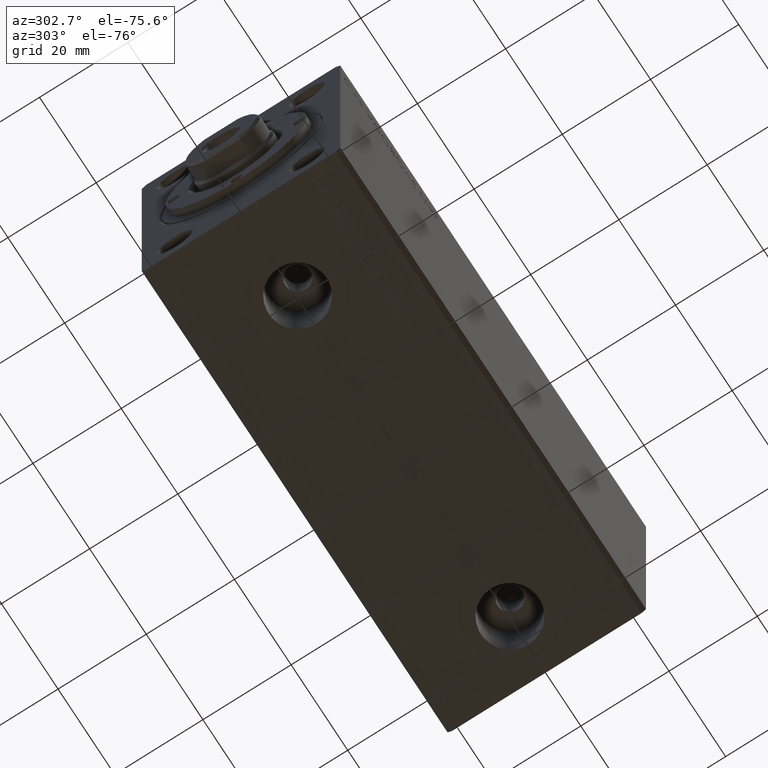
[diagram: clean part render]
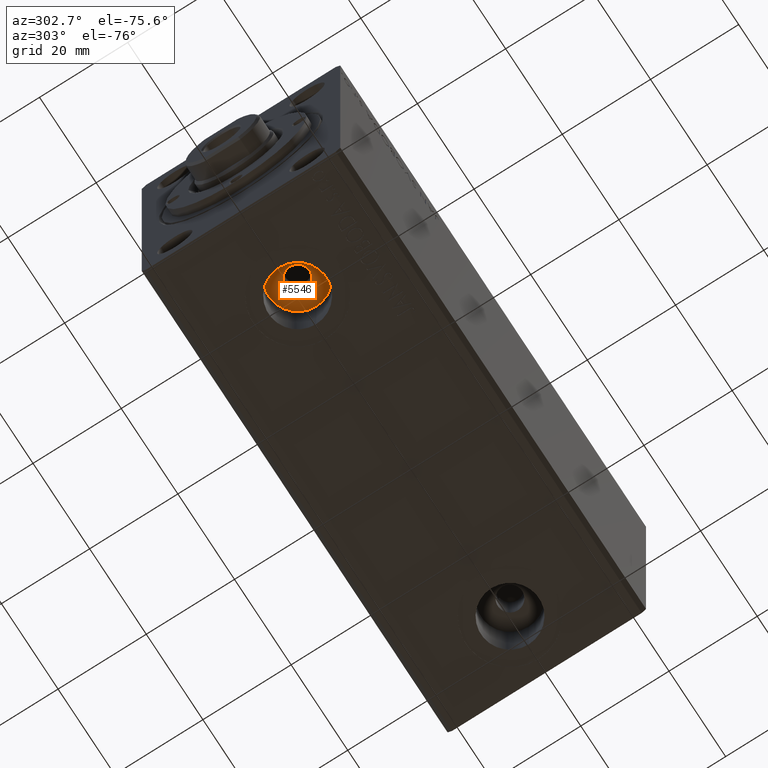
[diagram: same view with one face highlighted and labeled with its STEP entity id]
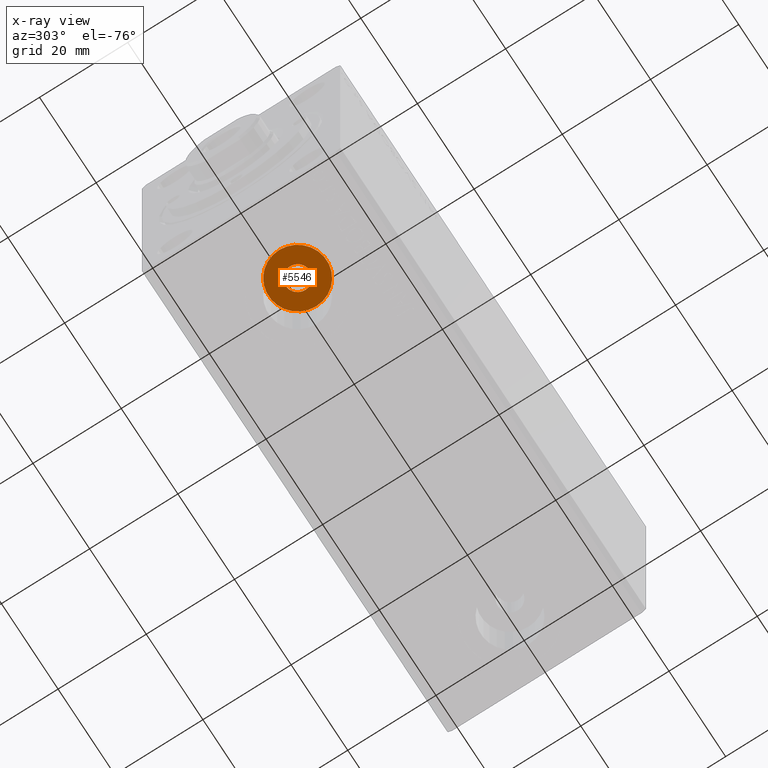
[diagram: x-ray of the same camera — body ghosted, the highlighted face saturated]
A machine part, auxiliary view. The second image highlights one B-rep face of the part: STEP entity #5546.
The next image is the same camera in x-ray: the body ghosted, the highlighted face saturated — about 0% of this face is hidden behind the body in this view.
In plain terms, the highlighted planar face has unit normal (0, 0, -1).
Its self-contained STEP definition (entity closure, byte-faithful):
#125 = CARTESIAN_POINT ( 'NONE',  ( 22.74999999999999645, 3.367778697655218053E-16, -18.79999999999999716 ) ) ;
#198 = DIRECTION ( 'NONE',  ( 0.000000000000000000, 0.000000000000000000, -1.000000000000000000 ) ) ;
#272 = VERTEX_POINT ( 'NONE', #10076 ) ;
#376 = EDGE_CURVE ( 'NONE', #27075, #32230, #25580, .T. ) ;
#534 = EDGE_CURVE ( 'NONE', #32230, #27075, #19882, .T. ) ;
#1782 = ORIENTED_EDGE ( 'NONE', *, *, #534, .T. ) ;
#1894 = DIRECTION ( 'NONE',  ( -1.000000000000000000, 0.000000000000000000, -0.000000000000000000 ) ) ;
#4990 = CARTESIAN_POINT ( 'NONE',  ( 19.99999999999999645, 2.578758962896938545E-15, -18.79999999999999716 ) ) ;
#5300 = DIRECTION ( 'NONE',  ( -1.000000000000000000, 0.000000000000000000, 0.000000000000000000 ) ) ;
#5546 = ADVANCED_FACE ( 'NONE', ( #15710, #22643 ), #32487, .T. ) ;
#5626 = ORIENTED_EDGE ( 'NONE', *, *, #24999, .F. ) ;
#6239 = DIRECTION ( 'NONE',  ( 0.000000000000000000, 0.000000000000000000, -1.000000000000000000 ) ) ;
#7029 = CARTESIAN_POINT ( 'NONE',  ( 19.99999999999999645, 0.000000000000000000, -18.79999999999999716 ) ) ;
#8753 = CARTESIAN_POINT ( 'NONE',  ( 26.57999999999999829, 3.384576556735897587E-15, -18.79999999999999716 ) ) ;
#9361 = VERTEX_POINT ( 'NONE', #125 ) ;
#10076 = CARTESIAN_POINT ( 'NONE',  ( 17.24999999999999645, 0.000000000000000000, -18.79999999999999716 ) ) ;
#10267 = AXIS2_PLACEMENT_3D ( 'NONE', #7029, #13946, #20654 ) ;
#10642 = CARTESIAN_POINT ( 'NONE',  ( 19.99999999999999645, 0.000000000000000000, -18.79999999999999716 ) ) ;
#11668 = ORIENTED_EDGE ( 'NONE', *, *, #30477, .F. ) ;
#13946 = DIRECTION ( 'NONE',  ( 0.000000000000000000, 0.000000000000000000, -1.000000000000000000 ) ) ;
#15710 = FACE_BOUND ( 'NONE', #40167, .T. ) ;
#16973 = CIRCLE ( 'NONE', #27696, 2.749999999999999112 ) ;
#18389 = DIRECTION ( 'NONE',  ( 0.000000000000000000, 0.000000000000000000, -1.000000000000000000 ) ) ;
#18591 = ORIENTED_EDGE ( 'NONE', *, *, #376, .T. ) ;
#19882 = CIRCLE ( 'NONE', #27037, 6.580000000000002736 ) ;
#20654 = DIRECTION ( 'NONE',  ( -1.000000000000000000, 0.000000000000000000, 0.000000000000000000 ) ) ;
#22643 = FACE_OUTER_BOUND ( 'NONE', #26335, .T. ) ;
#24999 = EDGE_CURVE ( 'NONE', #9361, #272, #16973, .T. ) ;
#25257 = CIRCLE ( 'NONE', #10267, 2.749999999999999112 ) ;
#25580 = CIRCLE ( 'NONE', #32724, 6.580000000000002736 ) ;
#25612 = AXIS2_PLACEMENT_3D ( 'NONE', #4990, #18389, #1894 ) ;
#26335 = EDGE_LOOP ( 'NONE', ( #18591, #1782 ) ) ;
#27008 = CARTESIAN_POINT ( 'NONE',  ( 13.41999999999999460, 2.578758962896938545E-15, -18.79999999999999716 ) ) ;
#27037 = AXIS2_PLACEMENT_3D ( 'NONE', #39255, #35686, #5300 ) ;
#27075 = VERTEX_POINT ( 'NONE', #27008 ) ;
#27425 = DIRECTION ( 'NONE',  ( -1.000000000000000000, 0.000000000000000000, 0.000000000000000000 ) ) ;
#27696 = AXIS2_PLACEMENT_3D ( 'NONE', #10642, #198, #27425 ) ;
#30477 = EDGE_CURVE ( 'NONE', #272, #9361, #25257, .T. ) ;
#32230 = VERTEX_POINT ( 'NONE', #8753 ) ;
#32487 = PLANE ( 'NONE',  #25612 ) ;
#32724 = AXIS2_PLACEMENT_3D ( 'NONE', #43526, #6239, #36859 ) ;
#35686 = DIRECTION ( 'NONE',  ( 0.000000000000000000, 0.000000000000000000, -1.000000000000000000 ) ) ;
#36859 = DIRECTION ( 'NONE',  ( -1.000000000000000000, 0.000000000000000000, 0.000000000000000000 ) ) ;
#39255 = CARTESIAN_POINT ( 'NONE',  ( 19.99999999999999645, 2.578758962896938545E-15, -18.79999999999999716 ) ) ;
#40167 = EDGE_LOOP ( 'NONE', ( #11668, #5626 ) ) ;
#43526 = CARTESIAN_POINT ( 'NONE',  ( 19.99999999999999645, 2.578758962896938545E-15, -18.79999999999999716 ) ) ;